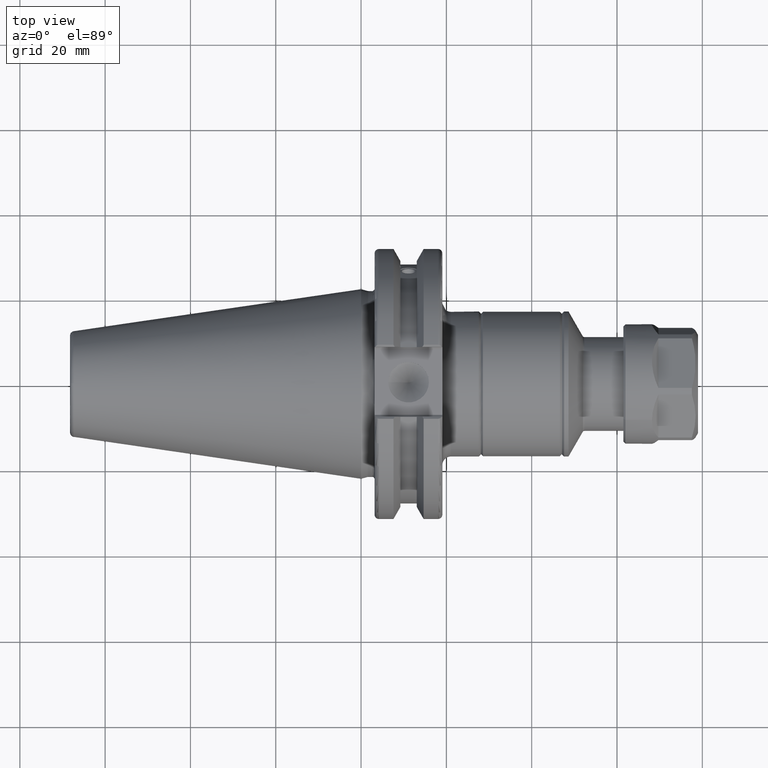
[diagram: clean part render]
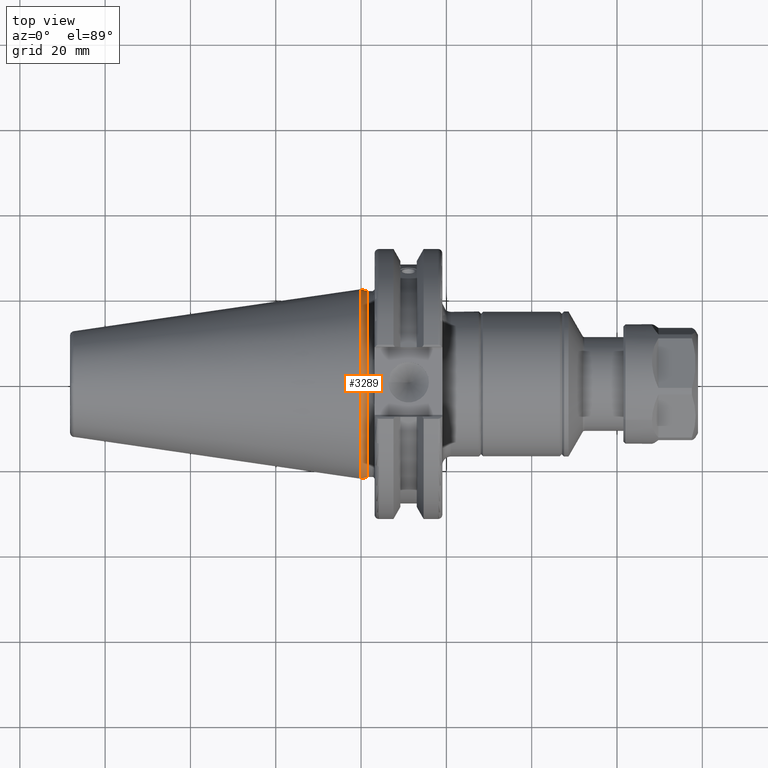
[diagram: same view with one face highlighted and labeled with its STEP entity id]
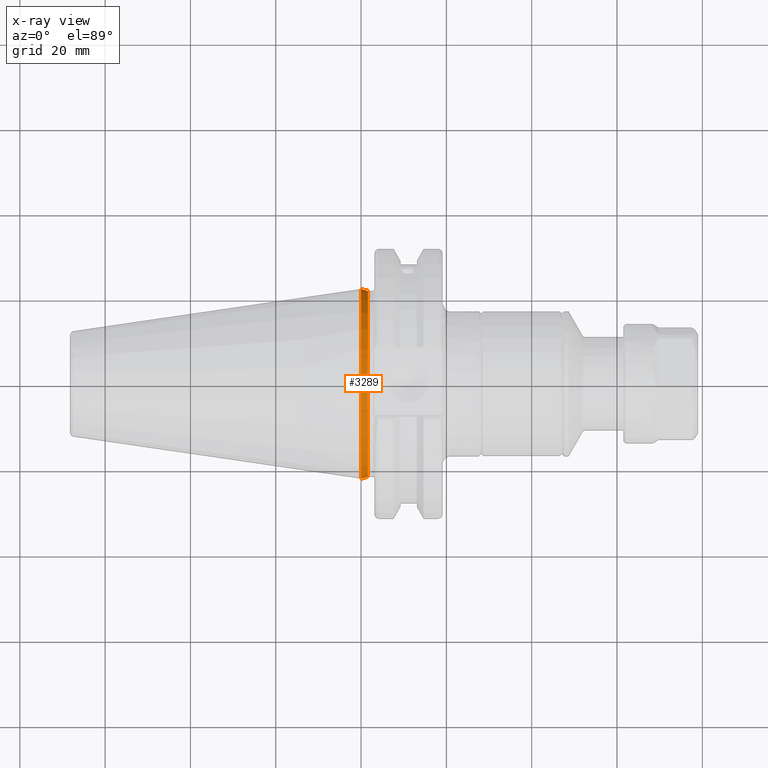
[diagram: x-ray of the same camera — body ghosted, the highlighted face saturated]
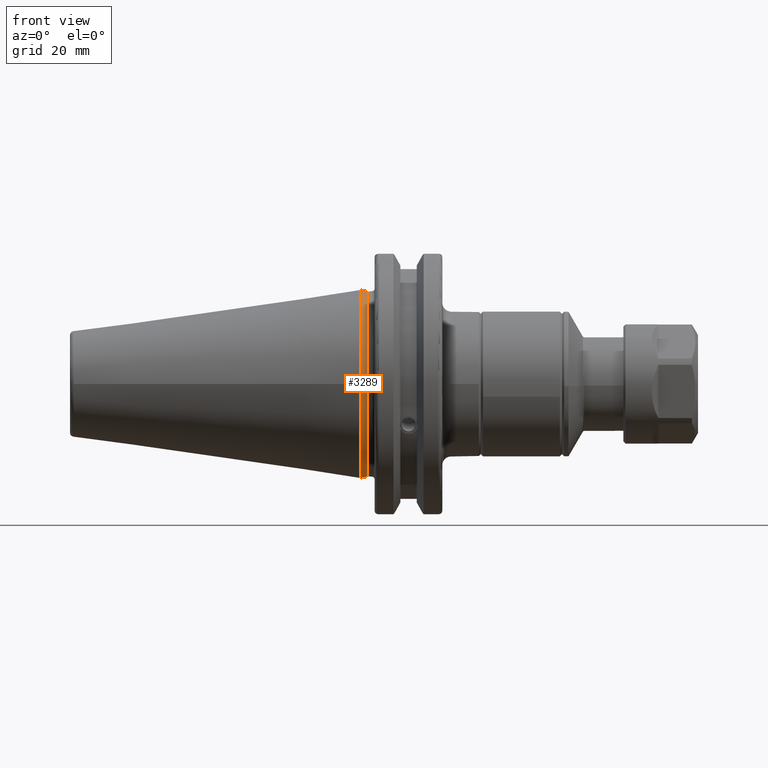
[diagram: same view with one face highlighted and labeled with its STEP entity id]
A machine part, top view. The second image highlights one B-rep face of the part: STEP entity #3289.
The next image is the same camera in x-ray: the body ghosted, the highlighted face saturated — about 0% of this face is hidden behind the body in this view.
A second angle (front view) of the same face is appended — the face is thin or edge-on in the first view.
In plain terms, the highlighted conical surface has half-angle 15 deg.
Its self-contained STEP definition (entity closure, byte-faithful):
#477=FACE_OUTER_BOUND('',#699,.T.);
#699=EDGE_LOOP('',(#2721,#2722,#2723,#2724));
#921=LINE('',#5877,#1109);
#1109=VECTOR('',#4496,22.0125);
#1261=CIRCLE('',#3667,21.8);
#1272=CIRCLE('',#3693,22.225);
#1526=VERTEX_POINT('',#5599);
#1559=VERTEX_POINT('',#5808);
#1893=EDGE_CURVE('',#1526,#1526,#1261,.T.);
#1945=EDGE_CURVE('',#1559,#1559,#1272,.T.);
#1975=EDGE_CURVE('',#1526,#1559,#921,.T.);
#2721=ORIENTED_EDGE('',*,*,#1893,.F.);
#2722=ORIENTED_EDGE('',*,*,#1975,.T.);
#2723=ORIENTED_EDGE('',*,*,#1945,.T.);
#2724=ORIENTED_EDGE('',*,*,#1975,.F.);
#3157=CONICAL_SURFACE('',#3731,22.0125,0.261799387799148);
#3289=ADVANCED_FACE('',(#477),#3157,.T.);
#3667=AXIS2_PLACEMENT_3D('',#5601,#4331,#4332);
#3693=AXIS2_PLACEMENT_3D('',#5809,#4402,#4403);
#3731=AXIS2_PLACEMENT_3D('',#5876,#4494,#4495);
#4331=DIRECTION('center_axis',(1.,0.,0.));
#4332=DIRECTION('ref_axis',(0.,0.,-1.));
#4402=DIRECTION('center_axis',(1.,0.,0.));
#4403=DIRECTION('ref_axis',(0.,0.,-1.));
#4494=DIRECTION('center_axis',(-1.,0.,0.));
#4495=DIRECTION('ref_axis',(0.,1.,0.));
#4496=DIRECTION('',(-0.965925826289069,-0.258819045102519,-3.16961915143175E-17));
#5599=CARTESIAN_POINT('',(1.58612159321676,-21.8,-2.66973002214123E-15));
#5601=CARTESIAN_POINT('Origin',(1.58612159321676,0.,0.));
#5808=CARTESIAN_POINT('',(0.,-22.225,-2.72177751110499E-15));
#5809=CARTESIAN_POINT('Origin',(0.,0.,0.));
#5876=CARTESIAN_POINT('Origin',(0.793060796608378,0.,0.));
#5877=CARTESIAN_POINT('',(0.793060796608378,-22.0125,-2.69575376662311E-15));